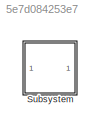
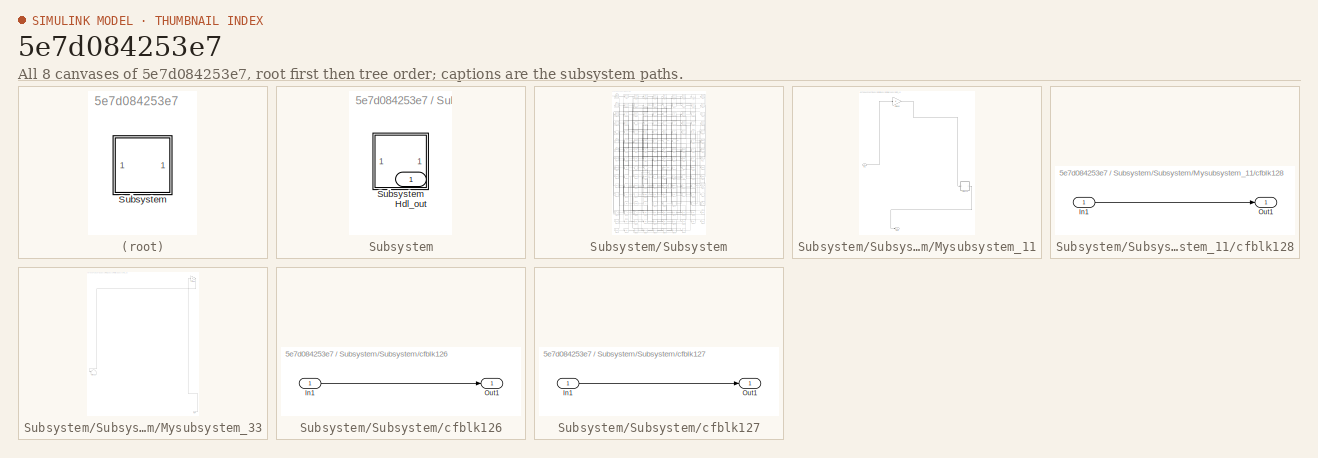
[diagram: thumbnail index - all 8 canvases of the model, root first then tree order]
MODEL slx_5e7d084253e7
KIND model
CONFIG AbsTol = auto
CONFIG EnableMultiTasking = off
CONFIG FixedStep = auto
CONFIG MaxStep = auto
CONFIG MinStep = auto
CONFIG RelTol = 1e-3
CONFIG SampleTimeConstraint = Unconstrained
CONFIG SolverName = VariableStepAuto
CONFIG StartTime = 0.0
CONFIG StopTime = 10.0
BLOCK [SubSystem] Subsystem
BLOCK [Outport] Subsystem/Hdl_out
  OutDataTypeStr = uint8
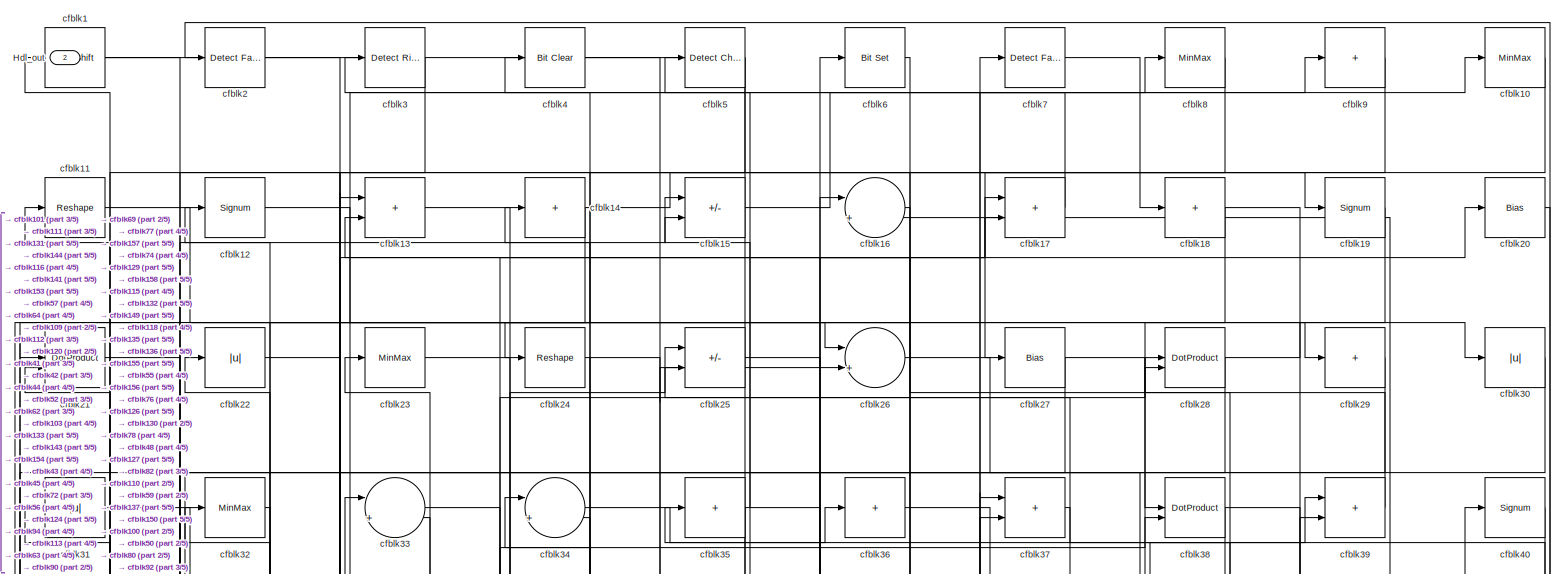
[diagram: Subsystem/Subsystem - part 1/5, full width, top band]
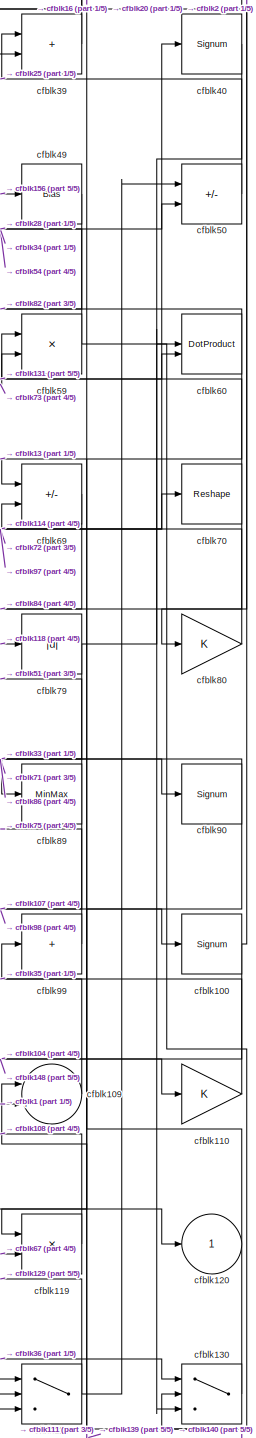
[diagram: Subsystem/Subsystem - part 2/5, middle right region]
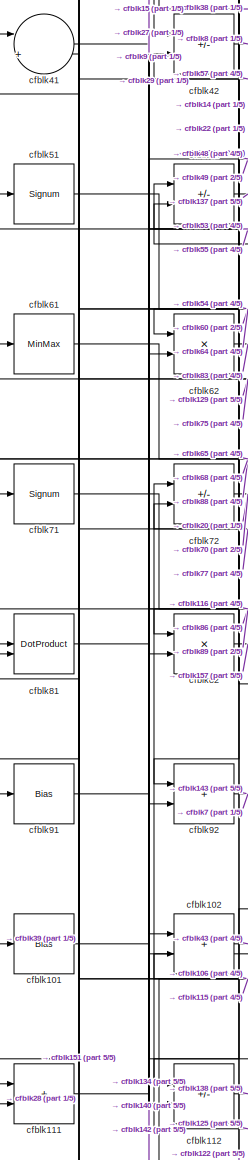
[diagram: Subsystem/Subsystem - part 3/5, middle left region]
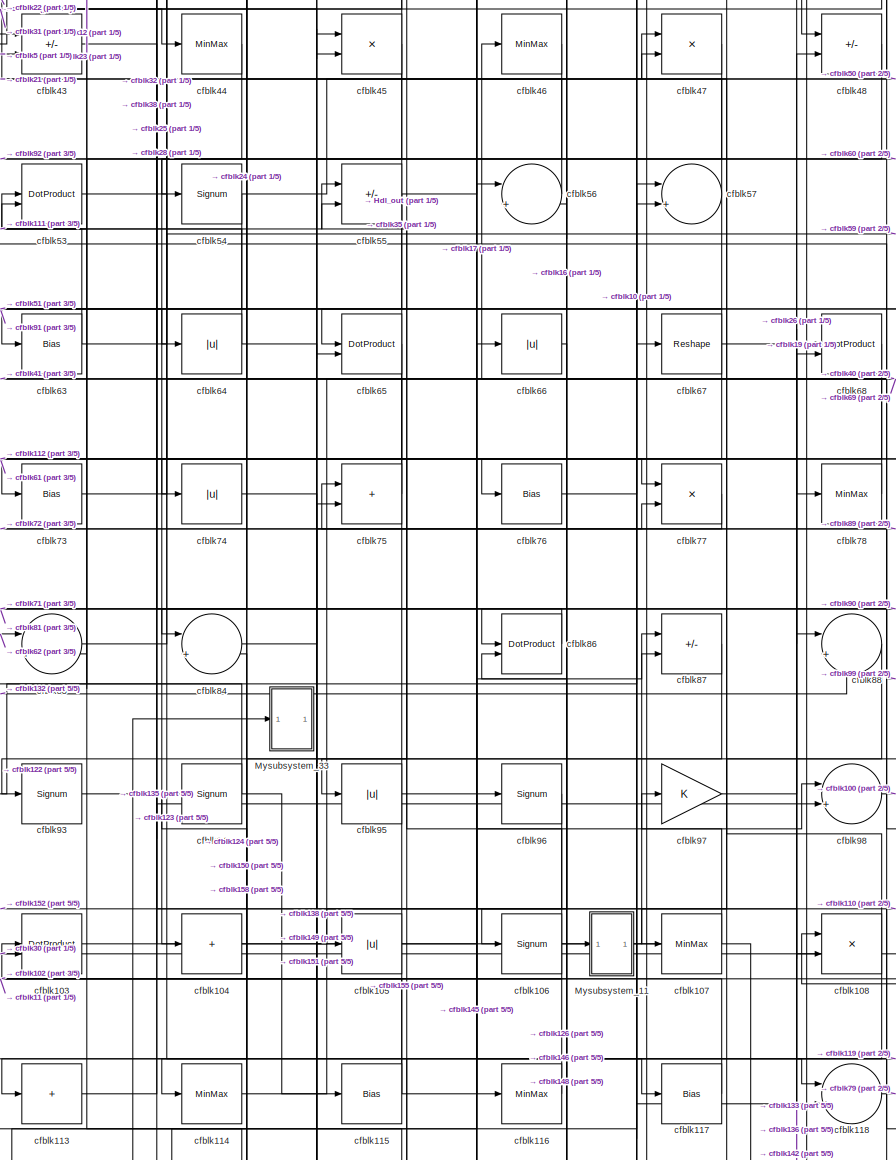
[diagram: Subsystem/Subsystem - part 4/5, central region]
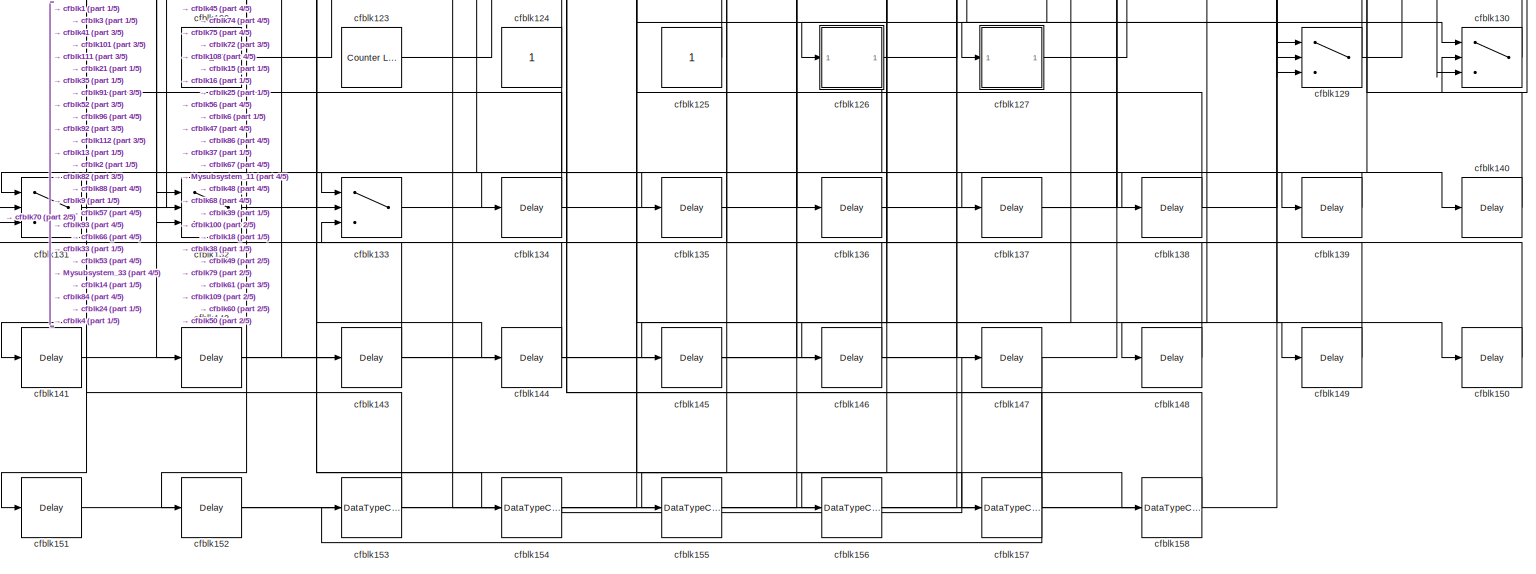
[diagram: Subsystem/Subsystem - part 5/5, full width, bottom band]
BLOCK [SubSystem] Subsystem/Subsystem
BLOCK [Outport] Subsystem/Subsystem/Hdl_out
  OutDataTypeStr = uint8
  Port = 2
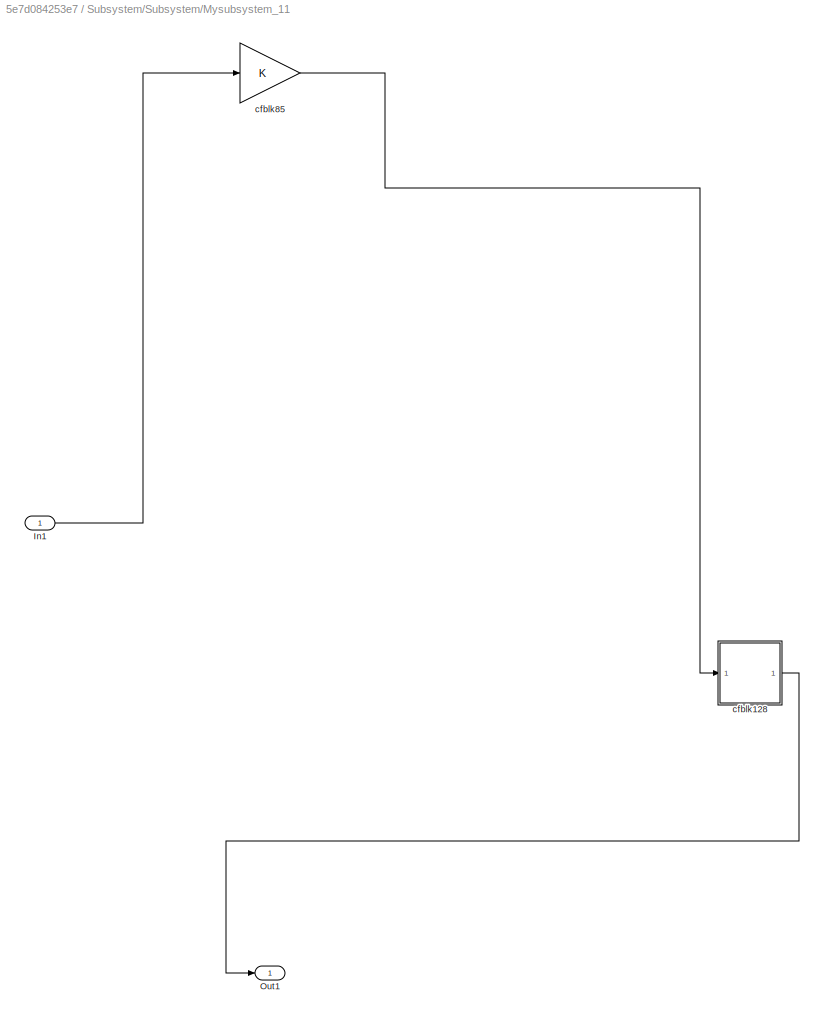
BLOCK [SubSystem] Subsystem/Subsystem/Mysubsystem_11
  RTWFcnName = Mysubsystem_11
  RTWFcnNameOpts = User specified
  RTWFileNameOpts = Use function name
  RTWSystemCode = Reusable function
  TreatAsAtomicUnit = on
BLOCK [Inport] Subsystem/Subsystem/Mysubsystem_11/In1
BLOCK [Outport] Subsystem/Subsystem/Mysubsystem_11/Out1
BLOCK [SubSystem] Subsystem/Subsystem/Mysubsystem_11/cfblk128
  LibrarySourceBlock = hdlsllib/Ports &\nSubsystems/Subsystem
BLOCK [Inport] Subsystem/Subsystem/Mysubsystem_11/cfblk128/In1
BLOCK [Outport] Subsystem/Subsystem/Mysubsystem_11/cfblk128/Out1
BLOCK [Gain] Subsystem/Subsystem/Mysubsystem_11/cfblk85
BLOCK [SubSystem] Subsystem/Subsystem/Mysubsystem_33
  RTWFcnName = Mysubsystem_33
  RTWFcnNameOpts = User specified
  RTWFileNameOpts = Use function name
  RTWSystemCode = Reusable function
  TreatAsAtomicUnit = on
BLOCK [Inport] Subsystem/Subsystem/Mysubsystem_33/In1
BLOCK [Terminator] Subsystem/Subsystem/Mysubsystem_33/cfblk121
BLOCK [Gain] Subsystem/Subsystem/Mysubsystem_33/cfblk58
BLOCK [ArithShift] Subsystem/Subsystem/cfblk1
  BitShiftNumber = 8
  InputPortMap = u0
BLOCK [MinMax] Subsystem/Subsystem/cfblk10
  OutDataTypeStr = uint8
BLOCK [Signum] Subsystem/Subsystem/cfblk100
BLOCK [Bias] Subsystem/Subsystem/cfblk101
  Bias = 0.0
  SaturateOnIntegerOverflow = off
BLOCK [Sum] Subsystem/Subsystem/cfblk102
  IconShape = rectangular
  OutDataTypeStr = uint8
BLOCK [DotProduct] Subsystem/Subsystem/cfblk103
  OutDataTypeStr = uint8
BLOCK [Sum] Subsystem/Subsystem/cfblk104
  IconShape = rectangular
  Inputs = +
  OutDataTypeStr = uint8
BLOCK [Abs] Subsystem/Subsystem/cfblk105
  OutDataTypeStr = uint8
  SaturateOnIntegerOverflow = off
BLOCK [Signum] Subsystem/Subsystem/cfblk106
BLOCK [MinMax] Subsystem/Subsystem/cfblk107
  OutDataTypeStr = uint8
BLOCK [Product] Subsystem/Subsystem/cfblk108
  Inputs = */
  OutDataTypeStr = uint8
  RndMeth = Zero
  SaturateOnIntegerOverflow = on
BLOCK [Sum] Subsystem/Subsystem/cfblk109
  Inputs = |++
  OutDataTypeStr = uint8
BLOCK [Reshape] Subsystem/Subsystem/cfblk11
BLOCK [Gain] Subsystem/Subsystem/cfblk110
  OutDataTypeStr = uint8
BLOCK [Sum] Subsystem/Subsystem/cfblk111
  IconShape = rectangular
  OutDataTypeStr = uint8
BLOCK [Sum] Subsystem/Subsystem/cfblk112
  IconShape = rectangular
  Inputs = +-
  OutDataTypeStr = uint8
BLOCK [Sum] Subsystem/Subsystem/cfblk113
  IconShape = rectangular
  Inputs = +
  OutDataTypeStr = uint8
BLOCK [MinMax] Subsystem/Subsystem/cfblk114
  OutDataTypeStr = uint8
BLOCK [Bias] Subsystem/Subsystem/cfblk115
  Bias = 0.0
  SaturateOnIntegerOverflow = off
BLOCK [MinMax] Subsystem/Subsystem/cfblk116
  OutDataTypeStr = uint8
BLOCK [Bias] Subsystem/Subsystem/cfblk117
  Bias = 0.0
  SaturateOnIntegerOverflow = off
BLOCK [Sum] Subsystem/Subsystem/cfblk118
  Inputs = |++
  OutDataTypeStr = uint8
BLOCK [Product] Subsystem/Subsystem/cfblk119
  Inputs = */
  OutDataTypeStr = uint8
  RndMeth = Zero
  SaturateOnIntegerOverflow = on
BLOCK [Signum] Subsystem/Subsystem/cfblk12
BLOCK [Outport] Subsystem/Subsystem/cfblk120
  OutDataTypeStr = uint8
  VectorParamsAs1DForOutWhenUnconnected = off
BLOCK [Ground] Subsystem/Subsystem/cfblk122
BLOCK [Reference] Subsystem/Subsystem/cfblk123  REF=hdlsllib/Sources/Counter
Limited
  SourceBlock = hdlsllib/Sources/Counter\nLimited
  SourceType = Counter Limited
BLOCK [Constant] Subsystem/Subsystem/cfblk124
  OutDataTypeStr = uint8
  SampleTime = -1
BLOCK [Constant] Subsystem/Subsystem/cfblk125
  OutDataTypeStr = uint8
  SampleTime = -1
BLOCK [SubSystem] Subsystem/Subsystem/cfblk126
  LibrarySourceBlock = hdlsllib/Ports &\nSubsystems/Subsystem
BLOCK [Inport] Subsystem/Subsystem/cfblk126/In1
BLOCK [Outport] Subsystem/Subsystem/cfblk126/Out1
BLOCK [SubSystem] Subsystem/Subsystem/cfblk127
  LibrarySourceBlock = hdlsllib/Ports &\nSubsystems/Subsystem
BLOCK [Inport] Subsystem/Subsystem/cfblk127/In1
BLOCK [Outport] Subsystem/Subsystem/cfblk127/Out1
BLOCK [Switch] Subsystem/Subsystem/cfblk129
  InputSameDT = off
  OutDataTypeStr = uint8
  SaturateOnIntegerOverflow = off
BLOCK [Sum] Subsystem/Subsystem/cfblk13
  IconShape = rectangular
  OutDataTypeStr = uint8
BLOCK [Switch] Subsystem/Subsystem/cfblk130
  InputSameDT = off
  OutDataTypeStr = uint8
  SaturateOnIntegerOverflow = off
BLOCK [Switch] Subsystem/Subsystem/cfblk131
  InputSameDT = off
  OutDataTypeStr = uint8
  SaturateOnIntegerOverflow = off
BLOCK [Switch] Subsystem/Subsystem/cfblk132
  InputSameDT = off
  OutDataTypeStr = uint8
  SaturateOnIntegerOverflow = off
BLOCK [Switch] Subsystem/Subsystem/cfblk133
  InputSameDT = off
  OutDataTypeStr = uint8
  SaturateOnIntegerOverflow = off
BLOCK [Delay] Subsystem/Subsystem/cfblk134
  InputPortMap = u0
  SampleTime = 1
BLOCK [Delay] Subsystem/Subsystem/cfblk135
  InputPortMap = u0
  SampleTime = 1
BLOCK [Delay] Subsystem/Subsystem/cfblk136
  InputPortMap = u0
  SampleTime = 1
BLOCK [Delay] Subsystem/Subsystem/cfblk137
  InputPortMap = u0
  SampleTime = 1
BLOCK [Delay] Subsystem/Subsystem/cfblk138
  InputPortMap = u0
  SampleTime = 1
BLOCK [Delay] Subsystem/Subsystem/cfblk139
  InputPortMap = u0
  SampleTime = 1
BLOCK [Sum] Subsystem/Subsystem/cfblk14
  IconShape = rectangular
  Inputs = +
  OutDataTypeStr = uint8
BLOCK [Delay] Subsystem/Subsystem/cfblk140
  InputPortMap = u0
  SampleTime = 1
BLOCK [Delay] Subsystem/Subsystem/cfblk141
  InputPortMap = u0
  SampleTime = 1
BLOCK [Delay] Subsystem/Subsystem/cfblk142
  InputPortMap = u0
  SampleTime = 1
BLOCK [Delay] Subsystem/Subsystem/cfblk143
  InputPortMap = u0
  SampleTime = 1
BLOCK [Delay] Subsystem/Subsystem/cfblk144
  InputPortMap = u0
  SampleTime = 1
BLOCK [Delay] Subsystem/Subsystem/cfblk145
  InputPortMap = u0
  SampleTime = 1
BLOCK [Delay] Subsystem/Subsystem/cfblk146
  InputPortMap = u0
  SampleTime = 1
BLOCK [Delay] Subsystem/Subsystem/cfblk147
  InputPortMap = u0
  SampleTime = 1
BLOCK [Delay] Subsystem/Subsystem/cfblk148
  InputPortMap = u0
  SampleTime = 1
BLOCK [Delay] Subsystem/Subsystem/cfblk149
  InputPortMap = u0
  SampleTime = 1
BLOCK [Sum] Subsystem/Subsystem/cfblk15
  IconShape = rectangular
  Inputs = +-
  OutDataTypeStr = uint8
BLOCK [Delay] Subsystem/Subsystem/cfblk150
  InputPortMap = u0
  SampleTime = 1
BLOCK [Delay] Subsystem/Subsystem/cfblk151
  InputPortMap = u0
  SampleTime = 1
BLOCK [Delay] Subsystem/Subsystem/cfblk152
  InputPortMap = u0
  SampleTime = 1
BLOCK [DataTypeConversion] Subsystem/Subsystem/cfblk153
  OutDataTypeStr = uint8
  RndMeth = Floor
  SaturateOnIntegerOverflow = off
BLOCK [DataTypeConversion] Subsystem/Subsystem/cfblk154
  OutDataTypeStr = uint8
  RndMeth = Floor
  SaturateOnIntegerOverflow = off
BLOCK [DataTypeConversion] Subsystem/Subsystem/cfblk155
  OutDataTypeStr = uint8
  RndMeth = Floor
  SaturateOnIntegerOverflow = off
BLOCK [DataTypeConversion] Subsystem/Subsystem/cfblk156
  OutDataTypeStr = uint8
  RndMeth = Floor
  SaturateOnIntegerOverflow = off
BLOCK [DataTypeConversion] Subsystem/Subsystem/cfblk157
  OutDataTypeStr = uint8
  RndMeth = Floor
  SaturateOnIntegerOverflow = off
BLOCK [DataTypeConversion] Subsystem/Subsystem/cfblk158
  OutDataTypeStr = uint8
  RndMeth = Floor
  SaturateOnIntegerOverflow = off
BLOCK [Sum] Subsystem/Subsystem/cfblk16
  Inputs = |++
  OutDataTypeStr = uint8
BLOCK [Sum] Subsystem/Subsystem/cfblk17
  IconShape = rectangular
  OutDataTypeStr = uint8
BLOCK [Sum] Subsystem/Subsystem/cfblk18
  IconShape = rectangular
  Inputs = +
  OutDataTypeStr = uint8
BLOCK [Signum] Subsystem/Subsystem/cfblk19
BLOCK [Reference] Subsystem/Subsystem/cfblk2  REF=hdlsllib/Logic and Bit
Operations/Detect Fall
Negative
  SourceBlock = hdlsllib/Logic and Bit\nOperations/Detect Fall\nNegative
  SourceType = Detect Fall Negative
BLOCK [Bias] Subsystem/Subsystem/cfblk20
  Bias = 0.0
  SaturateOnIntegerOverflow = off
BLOCK [DotProduct] Subsystem/Subsystem/cfblk21
  OutDataTypeStr = uint8
BLOCK [Abs] Subsystem/Subsystem/cfblk22
  OutDataTypeStr = uint8
  SaturateOnIntegerOverflow = off
BLOCK [MinMax] Subsystem/Subsystem/cfblk23
  OutDataTypeStr = uint8
BLOCK [Reshape] Subsystem/Subsystem/cfblk24
BLOCK [Sum] Subsystem/Subsystem/cfblk25
  IconShape = rectangular
  Inputs = +-
  OutDataTypeStr = uint8
BLOCK [Sum] Subsystem/Subsystem/cfblk26
  Inputs = |++
  OutDataTypeStr = uint8
BLOCK [Bias] Subsystem/Subsystem/cfblk27
  Bias = 0.0
  SaturateOnIntegerOverflow = off
BLOCK [DotProduct] Subsystem/Subsystem/cfblk28
  OutDataTypeStr = uint8
BLOCK [Sum] Subsystem/Subsystem/cfblk29
  IconShape = rectangular
  Inputs = +
  OutDataTypeStr = uint8
BLOCK [Reference] Subsystem/Subsystem/cfblk3  REF=hdlsllib/Logic and Bit
Operations/Detect Rise
Positive
  SourceBlock = hdlsllib/Logic and Bit\nOperations/Detect Rise\nPositive
  SourceType = Detect Rise Positive
BLOCK [Abs] Subsystem/Subsystem/cfblk30
  OutDataTypeStr = uint8
  SaturateOnIntegerOverflow = off
BLOCK [Abs] Subsystem/Subsystem/cfblk31
  OutDataTypeStr = uint8
  SaturateOnIntegerOverflow = off
BLOCK [MinMax] Subsystem/Subsystem/cfblk32
  OutDataTypeStr = uint8
BLOCK [Sum] Subsystem/Subsystem/cfblk33
  Inputs = |++
  OutDataTypeStr = uint8
BLOCK [Sum] Subsystem/Subsystem/cfblk34
  Inputs = |++
  OutDataTypeStr = uint8
BLOCK [Sum] Subsystem/Subsystem/cfblk35
  IconShape = rectangular
  Inputs = +
  OutDataTypeStr = uint8
BLOCK [Sum] Subsystem/Subsystem/cfblk36
  IconShape = rectangular
  Inputs = +
  OutDataTypeStr = uint8
BLOCK [Sum] Subsystem/Subsystem/cfblk37
  IconShape = rectangular
  OutDataTypeStr = uint8
BLOCK [DotProduct] Subsystem/Subsystem/cfblk38
  OutDataTypeStr = uint8
BLOCK [Sum] Subsystem/Subsystem/cfblk39
  IconShape = rectangular
  OutDataTypeStr = uint8
BLOCK [Reference] Subsystem/Subsystem/cfblk4  REF=simulink/Logic and Bit
Operations/Bit Clear
  LibrarySourceBlock = hdlsllib/Logic and Bit\nOperations/Bit Clear
  SourceBlock = simulink/Logic and Bit\nOperations/Bit Clear
  SourceType = Bit Clear
BLOCK [Signum] Subsystem/Subsystem/cfblk40
BLOCK [Sum] Subsystem/Subsystem/cfblk41
  Inputs = |++
  OutDataTypeStr = uint8
BLOCK [Sum] Subsystem/Subsystem/cfblk42
  IconShape = rectangular
  Inputs = +-
  OutDataTypeStr = uint8
BLOCK [Sum] Subsystem/Subsystem/cfblk43
  IconShape = rectangular
  Inputs = +-
  OutDataTypeStr = uint8
BLOCK [MinMax] Subsystem/Subsystem/cfblk44
  OutDataTypeStr = uint8
BLOCK [Product] Subsystem/Subsystem/cfblk45
  Inputs = */
  OutDataTypeStr = uint8
  RndMeth = Zero
  SaturateOnIntegerOverflow = on
BLOCK [MinMax] Subsystem/Subsystem/cfblk46
  OutDataTypeStr = uint8
BLOCK [Product] Subsystem/Subsystem/cfblk47
  Inputs = */
  OutDataTypeStr = uint8
  RndMeth = Zero
  SaturateOnIntegerOverflow = on
BLOCK [Sum] Subsystem/Subsystem/cfblk48
  IconShape = rectangular
  Inputs = +-
  OutDataTypeStr = uint8
BLOCK [Bias] Subsystem/Subsystem/cfblk49
  Bias = 0.0
  SaturateOnIntegerOverflow = off
BLOCK [Reference] Subsystem/Subsystem/cfblk5  REF=simulink/Logic and Bit
Operations/Detect
Change
  LibrarySourceBlock = hdlsllib/Logic and Bit\nOperations/Detect\nChange
  SourceBlock = simulink/Logic and Bit\nOperations/Detect\nChange
  SourceType = Detect Change
BLOCK [Sum] Subsystem/Subsystem/cfblk50
  IconShape = rectangular
  Inputs = +-
  OutDataTypeStr = uint8
BLOCK [Signum] Subsystem/Subsystem/cfblk51
BLOCK [Sum] Subsystem/Subsystem/cfblk52
  IconShape = rectangular
  Inputs = +-
  OutDataTypeStr = uint8
BLOCK [DotProduct] Subsystem/Subsystem/cfblk53
  OutDataTypeStr = uint8
BLOCK [Signum] Subsystem/Subsystem/cfblk54
BLOCK [Sum] Subsystem/Subsystem/cfblk55
  IconShape = rectangular
  Inputs = +-
  OutDataTypeStr = uint8
BLOCK [Sum] Subsystem/Subsystem/cfblk56
  Inputs = |++
  OutDataTypeStr = uint8
BLOCK [Sum] Subsystem/Subsystem/cfblk57
  Inputs = |++
  OutDataTypeStr = uint8
BLOCK [Product] Subsystem/Subsystem/cfblk59
  Inputs = */
  OutDataTypeStr = uint8
  RndMeth = Zero
  SaturateOnIntegerOverflow = on
BLOCK [Reference] Subsystem/Subsystem/cfblk6  REF=simulink/Logic and Bit
Operations/Bit Set
  LibrarySourceBlock = hdlsllib/Logic and Bit\nOperations/Bit Set
  SourceBlock = simulink/Logic and Bit\nOperations/Bit Set
  SourceType = Bit Set
BLOCK [DotProduct] Subsystem/Subsystem/cfblk60
  OutDataTypeStr = uint8
BLOCK [MinMax] Subsystem/Subsystem/cfblk61
  OutDataTypeStr = uint8
BLOCK [Product] Subsystem/Subsystem/cfblk62
  Inputs = */
  OutDataTypeStr = uint8
  RndMeth = Zero
  SaturateOnIntegerOverflow = on
BLOCK [Bias] Subsystem/Subsystem/cfblk63
  Bias = 0.0
  SaturateOnIntegerOverflow = off
BLOCK [Abs] Subsystem/Subsystem/cfblk64
  OutDataTypeStr = uint8
  SaturateOnIntegerOverflow = off
BLOCK [DotProduct] Subsystem/Subsystem/cfblk65
  OutDataTypeStr = uint8
BLOCK [Abs] Subsystem/Subsystem/cfblk66
  OutDataTypeStr = uint8
  SaturateOnIntegerOverflow = off
BLOCK [Reshape] Subsystem/Subsystem/cfblk67
BLOCK [DotProduct] Subsystem/Subsystem/cfblk68
  OutDataTypeStr = uint8
BLOCK [Sum] Subsystem/Subsystem/cfblk69
  IconShape = rectangular
  Inputs = +-
  OutDataTypeStr = uint8
BLOCK [Reference] Subsystem/Subsystem/cfblk7  REF=hdlsllib/Logic and Bit
Operations/Detect Fall
Nonpositive
  SourceBlock = hdlsllib/Logic and Bit\nOperations/Detect Fall\nNonpositive
  SourceType = Detect Fall Nonpositive
BLOCK [Reshape] Subsystem/Subsystem/cfblk70
BLOCK [Signum] Subsystem/Subsystem/cfblk71
BLOCK [Sum] Subsystem/Subsystem/cfblk72
  IconShape = rectangular
  Inputs = +-
  OutDataTypeStr = uint8
BLOCK [Bias] Subsystem/Subsystem/cfblk73
  Bias = 0.0
  SaturateOnIntegerOverflow = off
BLOCK [Abs] Subsystem/Subsystem/cfblk74
  OutDataTypeStr = uint8
  SaturateOnIntegerOverflow = off
BLOCK [Sum] Subsystem/Subsystem/cfblk75
  IconShape = rectangular
  OutDataTypeStr = uint8
BLOCK [Bias] Subsystem/Subsystem/cfblk76
  Bias = 0.0
  SaturateOnIntegerOverflow = off
BLOCK [Product] Subsystem/Subsystem/cfblk77
  Inputs = */
  OutDataTypeStr = uint8
  RndMeth = Zero
  SaturateOnIntegerOverflow = on
BLOCK [MinMax] Subsystem/Subsystem/cfblk78
  OutDataTypeStr = uint8
BLOCK [Abs] Subsystem/Subsystem/cfblk79
  OutDataTypeStr = uint8
  SaturateOnIntegerOverflow = off
BLOCK [MinMax] Subsystem/Subsystem/cfblk8
  OutDataTypeStr = uint8
BLOCK [Gain] Subsystem/Subsystem/cfblk80
  OutDataTypeStr = uint8
BLOCK [DotProduct] Subsystem/Subsystem/cfblk81
  OutDataTypeStr = uint8
BLOCK [Product] Subsystem/Subsystem/cfblk82
  Inputs = */
  OutDataTypeStr = uint8
  RndMeth = Zero
  SaturateOnIntegerOverflow = on
BLOCK [Sum] Subsystem/Subsystem/cfblk83
  Inputs = |++
  OutDataTypeStr = uint8
BLOCK [Sum] Subsystem/Subsystem/cfblk84
  Inputs = |++
  OutDataTypeStr = uint8
BLOCK [DotProduct] Subsystem/Subsystem/cfblk86
  OutDataTypeStr = uint8
BLOCK [Sum] Subsystem/Subsystem/cfblk87
  IconShape = rectangular
  Inputs = +-
  OutDataTypeStr = uint8
BLOCK [Sum] Subsystem/Subsystem/cfblk88
  Inputs = |++
  OutDataTypeStr = uint8
BLOCK [MinMax] Subsystem/Subsystem/cfblk89
  OutDataTypeStr = uint8
BLOCK [Sum] Subsystem/Subsystem/cfblk9
  IconShape = rectangular
  Inputs = +
  OutDataTypeStr = uint8
BLOCK [Signum] Subsystem/Subsystem/cfblk90
BLOCK [Bias] Subsystem/Subsystem/cfblk91
  Bias = 0.0
  SaturateOnIntegerOverflow = off
BLOCK [Sum] Subsystem/Subsystem/cfblk92
  IconShape = rectangular
  OutDataTypeStr = uint8
BLOCK [Signum] Subsystem/Subsystem/cfblk93
BLOCK [Signum] Subsystem/Subsystem/cfblk94
BLOCK [Abs] Subsystem/Subsystem/cfblk95
  OutDataTypeStr = uint8
  SaturateOnIntegerOverflow = off
BLOCK [Signum] Subsystem/Subsystem/cfblk96
BLOCK [Gain] Subsystem/Subsystem/cfblk97
  OutDataTypeStr = uint8
BLOCK [Sum] Subsystem/Subsystem/cfblk98
  Inputs = |++
  OutDataTypeStr = uint8
BLOCK [Sum] Subsystem/Subsystem/cfblk99
  IconShape = rectangular
  Inputs = +
  OutDataTypeStr = uint8
LINE Subsystem/Subsystem/Mysubsystem_11/In1:1 -> Subsystem/Subsystem/Mysubsystem_11/cfblk85:1
LINE Subsystem/Subsystem/Mysubsystem_11/cfblk128/In1:1 -> Subsystem/Subsystem/Mysubsystem_11/cfblk128/Out1:1
LINE Subsystem/Subsystem/Mysubsystem_11/cfblk128:1 -> Subsystem/Subsystem/Mysubsystem_11/Out1:1
LINE Subsystem/Subsystem/Mysubsystem_11/cfblk85:1 -> Subsystem/Subsystem/Mysubsystem_11/cfblk128:1
LINE Subsystem/Subsystem/Mysubsystem_11:1 -> Subsystem/Subsystem/cfblk145:1
LINE Subsystem/Subsystem/Mysubsystem_33/In1:1 -> Subsystem/Subsystem/Mysubsystem_33/cfblk58:1
LINE Subsystem/Subsystem/Mysubsystem_33/cfblk58:1 -> Subsystem/Subsystem/Mysubsystem_33/cfblk121:1
NET Subsystem/Subsystem/cfblk100:1 -> Subsystem/Subsystem/cfblk148:1, Subsystem/Subsystem/cfblk2:1
LINE Subsystem/Subsystem/cfblk101:1 -> Subsystem/Subsystem/cfblk134:1
LINE Subsystem/Subsystem/cfblk102:1 -> Subsystem/Subsystem/cfblk43:1
LINE Subsystem/Subsystem/cfblk103:1 -> Subsystem/Subsystem/cfblk38:2
LINE Subsystem/Subsystem/cfblk104:1 -> Subsystem/Subsystem/cfblk110:1
LINE Subsystem/Subsystem/cfblk105:1 -> Subsystem/Subsystem/cfblk98:1
NET Subsystem/Subsystem/cfblk106:1 -> Subsystem/Subsystem/cfblk102:2, Subsystem/Subsystem/cfblk118:2, Subsystem/Subsystem/cfblk55:2, Subsystem/Subsystem/cfblk87:1
LINE Subsystem/Subsystem/cfblk107:1 -> Subsystem/Subsystem/cfblk97:1
NET Subsystem/Subsystem/cfblk108:1 -> Subsystem/Subsystem/cfblk113:1, Subsystem/Subsystem/cfblk155:1, Subsystem/Subsystem/cfblk47:1
LINE Subsystem/Subsystem/cfblk109:1 -> Subsystem/Subsystem/cfblk99:1
NET Subsystem/Subsystem/cfblk10:1 -> Subsystem/Subsystem/cfblk24:1, Subsystem/Subsystem/cfblk56:2
LINE Subsystem/Subsystem/cfblk110:1 -> Subsystem/Subsystem/cfblk35:1
NET Subsystem/Subsystem/cfblk111:1 -> Subsystem/Subsystem/cfblk140:1, Subsystem/Subsystem/cfblk55:1
LINE Subsystem/Subsystem/cfblk112:1 -> Subsystem/Subsystem/cfblk138:1
NET Subsystem/Subsystem/cfblk113:1 -> Subsystem/Subsystem/Mysubsystem_11:1, Subsystem/Subsystem/cfblk17:2
LINE Subsystem/Subsystem/cfblk114:1 -> Subsystem/Subsystem/cfblk40:1
NET Subsystem/Subsystem/cfblk115:1 -> Subsystem/Subsystem/Hdl_out:1, Subsystem/Subsystem/cfblk81:2, Subsystem/Subsystem/cfblk87:2
NET Subsystem/Subsystem/cfblk116:1 -> Subsystem/Subsystem/cfblk11:1, Subsystem/Subsystem/cfblk94:1
LINE Subsystem/Subsystem/cfblk117:1 -> Subsystem/Subsystem/cfblk103:1
LINE Subsystem/Subsystem/cfblk118:1 -> Subsystem/Subsystem/cfblk79:1
LINE Subsystem/Subsystem/cfblk119:1 -> Subsystem/Subsystem/cfblk108:1
LINE Subsystem/Subsystem/cfblk11:1 -> Subsystem/Subsystem/cfblk29:1
NET Subsystem/Subsystem/cfblk122:1 -> Subsystem/Subsystem/cfblk52:1, Subsystem/Subsystem/cfblk57:1
LINE Subsystem/Subsystem/cfblk123:1 -> Subsystem/Subsystem/cfblk66:1
NET Subsystem/Subsystem/cfblk124:1 -> Subsystem/Subsystem/cfblk133:1, Subsystem/Subsystem/cfblk33:2, Subsystem/Subsystem/cfblk53:2
LINE Subsystem/Subsystem/cfblk125:1 -> Subsystem/Subsystem/cfblk72:1
LINE Subsystem/Subsystem/cfblk126/In1:1 -> Subsystem/Subsystem/cfblk126/Out1:1
NET Subsystem/Subsystem/cfblk126:1 -> Subsystem/Subsystem/cfblk132:3, Subsystem/Subsystem/cfblk37:1
LINE Subsystem/Subsystem/cfblk127/In1:1 -> Subsystem/Subsystem/cfblk127/Out1:1
LINE Subsystem/Subsystem/cfblk127:1 -> Subsystem/Subsystem/cfblk39:1
NET Subsystem/Subsystem/cfblk129:1 -> Subsystem/Subsystem/cfblk50:1, Subsystem/Subsystem/cfblk52:2, Subsystem/Subsystem/cfblk61:1
LINE Subsystem/Subsystem/cfblk12:1 -> Subsystem/Subsystem/cfblk26:1
LINE Subsystem/Subsystem/cfblk130:1 -> Subsystem/Subsystem/cfblk16:2
LINE Subsystem/Subsystem/cfblk131:1 -> Subsystem/Subsystem/cfblk60:2
NET Subsystem/Subsystem/cfblk132:1 -> Subsystem/Subsystem/cfblk144:1, Subsystem/Subsystem/cfblk88:2
LINE Subsystem/Subsystem/cfblk133:1 -> Subsystem/Subsystem/cfblk68:2
LINE Subsystem/Subsystem/cfblk134:1 -> Subsystem/Subsystem/cfblk41:1
LINE Subsystem/Subsystem/cfblk135:1 -> Subsystem/Subsystem/cfblk16:1
LINE Subsystem/Subsystem/cfblk136:1 -> Subsystem/Subsystem/cfblk68:1
LINE Subsystem/Subsystem/cfblk137:1 -> Subsystem/Subsystem/cfblk39:2
LINE Subsystem/Subsystem/cfblk138:1 -> Subsystem/Subsystem/cfblk45:1
LINE Subsystem/Subsystem/cfblk139:1 -> Subsystem/Subsystem/cfblk131:1
LINE Subsystem/Subsystem/cfblk13:1 -> Subsystem/Subsystem/cfblk69:1
LINE Subsystem/Subsystem/cfblk140:1 -> Subsystem/Subsystem/cfblk109:1
LINE Subsystem/Subsystem/cfblk141:1 -> Subsystem/Subsystem/cfblk37:2
LINE Subsystem/Subsystem/cfblk142:1 -> Subsystem/Subsystem/cfblk48:2
LINE Subsystem/Subsystem/cfblk143:1 -> Subsystem/Subsystem/cfblk13:1
LINE Subsystem/Subsystem/cfblk144:1 -> Subsystem/Subsystem/cfblk21:1
LINE Subsystem/Subsystem/cfblk145:1 -> Subsystem/Subsystem/cfblk56:1
LINE Subsystem/Subsystem/cfblk146:1 -> Subsystem/Subsystem/cfblk133:3
LINE Subsystem/Subsystem/cfblk147:1 -> Subsystem/Subsystem/cfblk153:1
LINE Subsystem/Subsystem/cfblk148:1 -> Subsystem/Subsystem/cfblk86:2
LINE Subsystem/Subsystem/cfblk149:1 -> Subsystem/Subsystem/cfblk15:2
NET Subsystem/Subsystem/cfblk14:1 -> Subsystem/Subsystem/cfblk19:1, Subsystem/Subsystem/cfblk62:1
LINE Subsystem/Subsystem/cfblk150:1 -> Subsystem/Subsystem/cfblk84:2
LINE Subsystem/Subsystem/cfblk151:1 -> Subsystem/Subsystem/cfblk75:2
LINE Subsystem/Subsystem/cfblk152:1 -> Subsystem/Subsystem/cfblk67:1
LINE Subsystem/Subsystem/cfblk153:1 -> Subsystem/Subsystem/cfblk1:1
LINE Subsystem/Subsystem/cfblk154:1 -> Subsystem/Subsystem/cfblk147:1
LINE Subsystem/Subsystem/cfblk155:1 -> Subsystem/Subsystem/cfblk6:1
LINE Subsystem/Subsystem/cfblk156:1 -> Subsystem/Subsystem/cfblk49:1
LINE Subsystem/Subsystem/cfblk157:1 -> Subsystem/Subsystem/cfblk4:1
NET Subsystem/Subsystem/cfblk158:1 -> Subsystem/Subsystem/Mysubsystem_33:1, Subsystem/Subsystem/cfblk14:1
LINE Subsystem/Subsystem/cfblk15:1 -> Subsystem/Subsystem/cfblk9:1
LINE Subsystem/Subsystem/cfblk16:1 -> Subsystem/Subsystem/cfblk76:1
LINE Subsystem/Subsystem/cfblk17:1 -> Subsystem/Subsystem/cfblk3:1
NET Subsystem/Subsystem/cfblk18:1 -> Subsystem/Subsystem/cfblk129:1, Subsystem/Subsystem/cfblk131:2
LINE Subsystem/Subsystem/cfblk19:1 -> Subsystem/Subsystem/cfblk48:1
NET Subsystem/Subsystem/cfblk1:1 -> Subsystem/Subsystem/cfblk109:2, Subsystem/Subsystem/cfblk120:1
LINE Subsystem/Subsystem/cfblk20:1 -> Subsystem/Subsystem/cfblk80:1
LINE Subsystem/Subsystem/cfblk21:1 -> Subsystem/Subsystem/cfblk132:1
LINE Subsystem/Subsystem/cfblk22:1 -> Subsystem/Subsystem/cfblk45:2
LINE Subsystem/Subsystem/cfblk23:1 -> Subsystem/Subsystem/cfblk77:1
NET Subsystem/Subsystem/cfblk24:1 -> Subsystem/Subsystem/cfblk129:3, Subsystem/Subsystem/cfblk26:2, Subsystem/Subsystem/cfblk74:1
LINE Subsystem/Subsystem/cfblk25:1 -> Subsystem/Subsystem/cfblk136:1
LINE Subsystem/Subsystem/cfblk26:1 -> Subsystem/Subsystem/cfblk78:1
NET Subsystem/Subsystem/cfblk27:1 -> Subsystem/Subsystem/cfblk38:1, Subsystem/Subsystem/cfblk62:2
NET Subsystem/Subsystem/cfblk28:1 -> Subsystem/Subsystem/cfblk111:2, Subsystem/Subsystem/cfblk30:1
LINE Subsystem/Subsystem/cfblk29:1 -> Subsystem/Subsystem/cfblk42:1
LINE Subsystem/Subsystem/cfblk2:1 -> Subsystem/Subsystem/cfblk154:1
LINE Subsystem/Subsystem/cfblk30:1 -> Subsystem/Subsystem/cfblk103:2
LINE Subsystem/Subsystem/cfblk31:1 -> Subsystem/Subsystem/cfblk44:1
LINE Subsystem/Subsystem/cfblk32:1 -> Subsystem/Subsystem/cfblk42:2
LINE Subsystem/Subsystem/cfblk33:1 -> Subsystem/Subsystem/cfblk90:1
LINE Subsystem/Subsystem/cfblk34:1 -> Subsystem/Subsystem/cfblk36:1
NET Subsystem/Subsystem/cfblk35:1 -> Subsystem/Subsystem/cfblk118:1, Subsystem/Subsystem/cfblk132:2, Subsystem/Subsystem/cfblk5:1
LINE Subsystem/Subsystem/cfblk36:1 -> Subsystem/Subsystem/cfblk130:1
LINE Subsystem/Subsystem/cfblk37:1 -> Subsystem/Subsystem/cfblk127:1
NET Subsystem/Subsystem/cfblk38:1 -> Subsystem/Subsystem/cfblk150:1, Subsystem/Subsystem/cfblk82:1
NET Subsystem/Subsystem/cfblk39:1 -> Subsystem/Subsystem/cfblk101:1, Subsystem/Subsystem/cfblk13:2
LINE Subsystem/Subsystem/cfblk3:1 -> Subsystem/Subsystem/cfblk141:1
LINE Subsystem/Subsystem/cfblk40:1 -> Subsystem/Subsystem/cfblk130:3
NET Subsystem/Subsystem/cfblk41:1 -> Subsystem/Subsystem/cfblk151:1, Subsystem/Subsystem/cfblk15:1
LINE Subsystem/Subsystem/cfblk42:1 -> Subsystem/Subsystem/cfblk8:1
NET Subsystem/Subsystem/cfblk43:1 -> Subsystem/Subsystem/cfblk108:2, Subsystem/Subsystem/cfblk98:2
LINE Subsystem/Subsystem/cfblk44:1 -> Subsystem/Subsystem/cfblk73:1
LINE Subsystem/Subsystem/cfblk45:1 -> Subsystem/Subsystem/cfblk65:2
LINE Subsystem/Subsystem/cfblk46:1 -> Subsystem/Subsystem/cfblk104:1
LINE Subsystem/Subsystem/cfblk47:1 -> Subsystem/Subsystem/cfblk146:1
LINE Subsystem/Subsystem/cfblk48:1 -> Subsystem/Subsystem/cfblk92:1
LINE Subsystem/Subsystem/cfblk49:1 -> Subsystem/Subsystem/cfblk82:2
LINE Subsystem/Subsystem/cfblk4:1 -> Subsystem/Subsystem/cfblk158:1
LINE Subsystem/Subsystem/cfblk50:1 -> Subsystem/Subsystem/cfblk25:1
LINE Subsystem/Subsystem/cfblk51:1 -> Subsystem/Subsystem/cfblk64:1
NET Subsystem/Subsystem/cfblk52:1 -> Subsystem/Subsystem/cfblk137:1, Subsystem/Subsystem/cfblk22:1
LINE Subsystem/Subsystem/cfblk53:1 -> Subsystem/Subsystem/cfblk117:1
NET Subsystem/Subsystem/cfblk54:1 -> Subsystem/Subsystem/cfblk50:2, Subsystem/Subsystem/cfblk91:1
NET Subsystem/Subsystem/cfblk55:1 -> Subsystem/Subsystem/cfblk17:1, Subsystem/Subsystem/cfblk65:1
LINE Subsystem/Subsystem/cfblk56:1 -> Subsystem/Subsystem/cfblk33:1
NET Subsystem/Subsystem/cfblk57:1 -> Subsystem/Subsystem/cfblk21:2, Subsystem/Subsystem/cfblk92:2
NET Subsystem/Subsystem/cfblk59:1 -> Subsystem/Subsystem/cfblk130:2, Subsystem/Subsystem/cfblk28:2, Subsystem/Subsystem/cfblk34:2
LINE Subsystem/Subsystem/cfblk5:1 -> Subsystem/Subsystem/cfblk43:2
NET Subsystem/Subsystem/cfblk60:1 -> Subsystem/Subsystem/cfblk111:1, Subsystem/Subsystem/cfblk139:1, Subsystem/Subsystem/cfblk54:1
LINE Subsystem/Subsystem/cfblk61:1 -> Subsystem/Subsystem/cfblk88:1
LINE Subsystem/Subsystem/cfblk62:1 -> Subsystem/Subsystem/cfblk83:1
NET Subsystem/Subsystem/cfblk63:1 -> Subsystem/Subsystem/cfblk25:2, Subsystem/Subsystem/cfblk28:1, Subsystem/Subsystem/cfblk32:1
NET Subsystem/Subsystem/cfblk64:1 -> Subsystem/Subsystem/cfblk105:1, Subsystem/Subsystem/cfblk31:1
LINE Subsystem/Subsystem/cfblk65:1 -> Subsystem/Subsystem/cfblk112:1
LINE Subsystem/Subsystem/cfblk66:1 -> Subsystem/Subsystem/cfblk106:1
NET Subsystem/Subsystem/cfblk67:1 -> Subsystem/Subsystem/cfblk119:2, Subsystem/Subsystem/cfblk63:1, Subsystem/Subsystem/cfblk83:2, Subsystem/Subsystem/cfblk95:1
NET Subsystem/Subsystem/cfblk68:1 -> Subsystem/Subsystem/cfblk126:1, Subsystem/Subsystem/cfblk71:1
LINE Subsystem/Subsystem/cfblk69:1 -> Subsystem/Subsystem/cfblk84:1
LINE Subsystem/Subsystem/cfblk6:1 -> Subsystem/Subsystem/cfblk156:1
NET Subsystem/Subsystem/cfblk70:1 -> Subsystem/Subsystem/cfblk131:3, Subsystem/Subsystem/cfblk59:2
NET Subsystem/Subsystem/cfblk71:1 -> Subsystem/Subsystem/cfblk116:1, Subsystem/Subsystem/cfblk53:1, Subsystem/Subsystem/cfblk89:1
NET Subsystem/Subsystem/cfblk72:1 -> Subsystem/Subsystem/cfblk20:1, Subsystem/Subsystem/cfblk70:1
NET Subsystem/Subsystem/cfblk73:1 -> Subsystem/Subsystem/cfblk47:2, Subsystem/Subsystem/cfblk59:1
LINE Subsystem/Subsystem/cfblk74:1 -> Subsystem/Subsystem/cfblk149:1
LINE Subsystem/Subsystem/cfblk75:1 -> Subsystem/Subsystem/cfblk41:2
LINE Subsystem/Subsystem/cfblk76:1 -> Subsystem/Subsystem/cfblk10:1
LINE Subsystem/Subsystem/cfblk77:1 -> Subsystem/Subsystem/cfblk72:2
LINE Subsystem/Subsystem/cfblk78:1 -> Subsystem/Subsystem/cfblk46:1
NET Subsystem/Subsystem/cfblk79:1 -> Subsystem/Subsystem/cfblk129:2, Subsystem/Subsystem/cfblk60:1
LINE Subsystem/Subsystem/cfblk7:1 -> Subsystem/Subsystem/cfblk18:1
LINE Subsystem/Subsystem/cfblk80:1 -> Subsystem/Subsystem/cfblk34:1
LINE Subsystem/Subsystem/cfblk81:1 -> Subsystem/Subsystem/cfblk102:1
LINE Subsystem/Subsystem/cfblk82:1 -> Subsystem/Subsystem/cfblk157:1
LINE Subsystem/Subsystem/cfblk83:1 -> Subsystem/Subsystem/cfblk57:2
LINE Subsystem/Subsystem/cfblk84:1 -> Subsystem/Subsystem/cfblk77:2
LINE Subsystem/Subsystem/cfblk86:1 -> Subsystem/Subsystem/cfblk81:1
LINE Subsystem/Subsystem/cfblk87:1 -> Subsystem/Subsystem/cfblk114:1
LINE Subsystem/Subsystem/cfblk88:1 -> Subsystem/Subsystem/cfblk93:1
NET Subsystem/Subsystem/cfblk89:1 -> Subsystem/Subsystem/cfblk107:1, Subsystem/Subsystem/cfblk51:1
LINE Subsystem/Subsystem/cfblk8:1 -> Subsystem/Subsystem/cfblk27:1
NET Subsystem/Subsystem/cfblk90:1 -> Subsystem/Subsystem/cfblk119:1, Subsystem/Subsystem/cfblk86:1
LINE Subsystem/Subsystem/cfblk91:1 -> Subsystem/Subsystem/cfblk142:1
NET Subsystem/Subsystem/cfblk92:1 -> Subsystem/Subsystem/cfblk143:1, Subsystem/Subsystem/cfblk7:1
LINE Subsystem/Subsystem/cfblk93:1 -> Subsystem/Subsystem/cfblk135:1
NET Subsystem/Subsystem/cfblk94:1 -> Subsystem/Subsystem/cfblk115:1, Subsystem/Subsystem/cfblk12:1, Subsystem/Subsystem/cfblk23:1
LINE Subsystem/Subsystem/cfblk95:1 -> Subsystem/Subsystem/cfblk96:1
LINE Subsystem/Subsystem/cfblk96:1 -> Subsystem/Subsystem/cfblk152:1
LINE Subsystem/Subsystem/cfblk97:1 -> Subsystem/Subsystem/cfblk69:2
LINE Subsystem/Subsystem/cfblk98:1 -> Subsystem/Subsystem/cfblk100:1
LINE Subsystem/Subsystem/cfblk99:1 -> Subsystem/Subsystem/cfblk75:1
NET Subsystem/Subsystem/cfblk9:1 -> Subsystem/Subsystem/cfblk112:2, Subsystem/Subsystem/cfblk133:2
note: NET lines group one-source signal fan-out (src -> all destinations, sorted); 1:1 wires keep LINE
